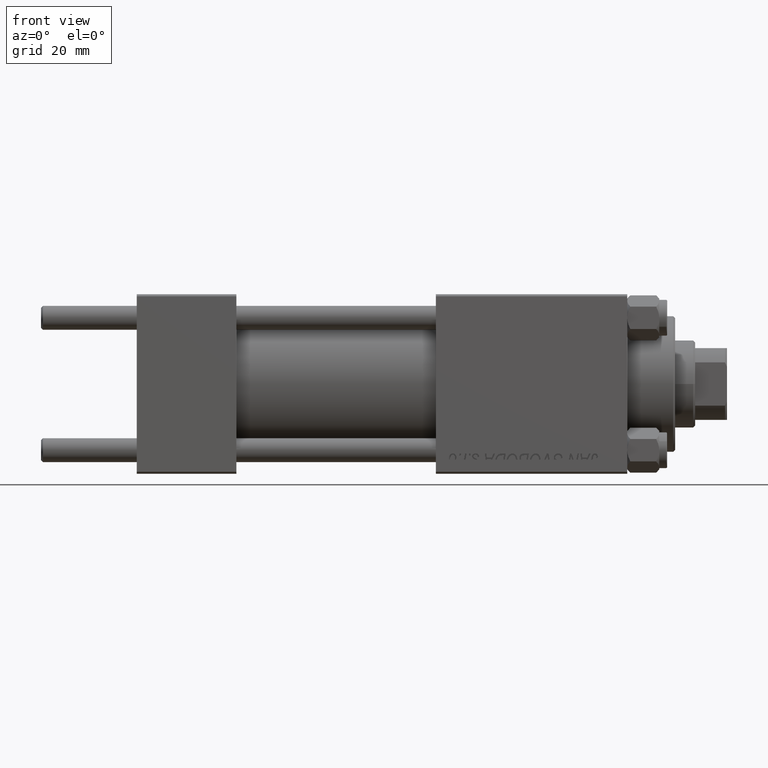
[diagram: clean part render]
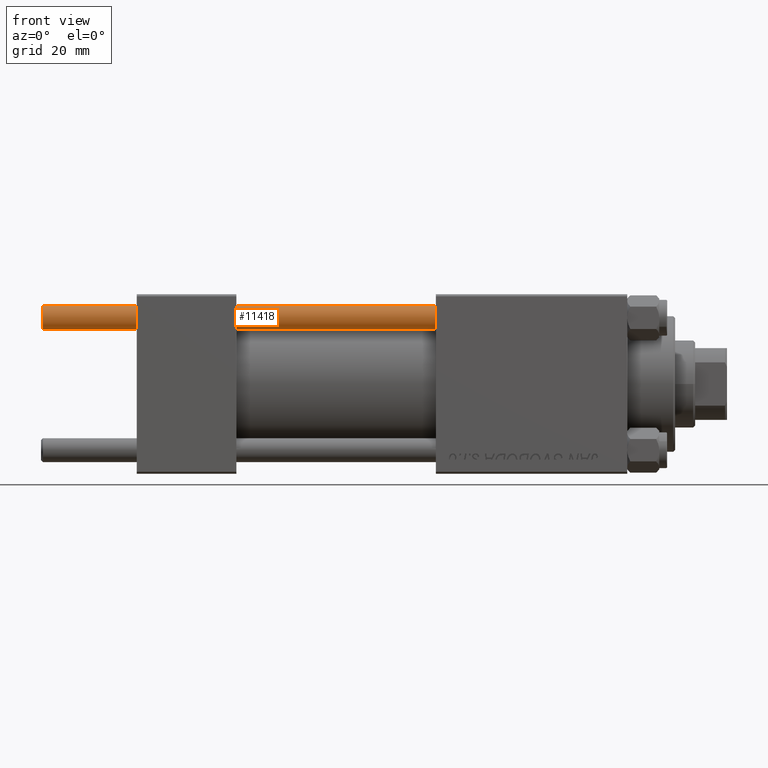
[diagram: same view with one face highlighted and labeled with its STEP entity id]
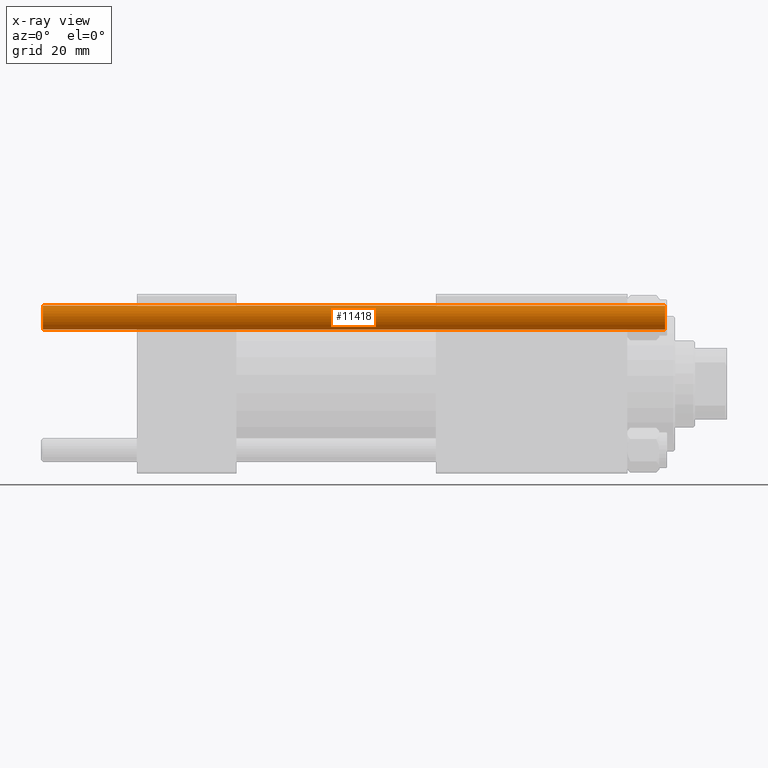
[diagram: x-ray of the same camera — body ghosted, the highlighted face saturated]
A machine part, front view. The second image highlights one B-rep face of the part: STEP entity #11418.
The next image is the same camera in x-ray: the body ghosted, the highlighted face saturated — about 0% of this face is hidden behind the body in this view.
In plain terms, the highlighted cylindrical surface (edge-blend (fillet) strip) has radius 3 mm, axis along (1, -0, 0).
Its self-contained STEP definition (entity closure, byte-faithful):
#767 = CARTESIAN_POINT ( 'NONE',  ( 0.000000000000000000, 0.000000000000000000, 156.5000000000000284 ) ) ;
#3072 = ORIENTED_EDGE ( 'NONE', *, *, #40832, .T. ) ;
#3074 = CARTESIAN_POINT ( 'NONE',  ( -3.000000000000000444, 0.000000000000000000, 0.4999999999999726885 ) ) ;
#3241 = CARTESIAN_POINT ( 'NONE',  ( 3.000000000000000444, 3.673940397442060361E-16, 156.5000000000000284 ) ) ;
#3388 = DIRECTION ( 'NONE',  ( -0.000000000000000000, -0.000000000000000000, -1.000000000000000000 ) ) ;
#3747 = CARTESIAN_POINT ( 'NONE',  ( 3.000000000000000444, 3.673940397442060361E-16, 0.4999999999999726885 ) ) ;
#4460 = VECTOR ( 'NONE', #49759, 1000.000000000000000 ) ;
#6427 = CARTESIAN_POINT ( 'NONE',  ( 3.000000000000000444, 3.673940397442060361E-16, 157.0000000000000000 ) ) ;
#7184 = CARTESIAN_POINT ( 'NONE',  ( -3.000000000000000444, 0.000000000000000000, 157.0000000000000000 ) ) ;
#11418 = ADVANCED_FACE ( 'NONE', ( #46055 ), #33550, .T. ) ;
#11778 = DIRECTION ( 'NONE',  ( -0.000000000000000000, -0.000000000000000000, -1.000000000000000000 ) ) ;
#12359 = DIRECTION ( 'NONE',  ( 1.000000000000000000, 0.000000000000000000, 0.000000000000000000 ) ) ;
#13427 = VERTEX_POINT ( 'NONE', #3747 ) ;
#16019 = EDGE_CURVE ( 'NONE', #13427, #18440, #25022, .T. ) ;
#18440 = VERTEX_POINT ( 'NONE', #3074 ) ;
#20185 = CARTESIAN_POINT ( 'NONE',  ( -3.000000000000000444, 0.000000000000000000, 156.5000000000000284 ) ) ;
#20429 = DIRECTION ( 'NONE',  ( 0.000000000000000000, 0.000000000000000000, -1.000000000000000000 ) ) ;
#24237 = ORIENTED_EDGE ( 'NONE', *, *, #27094, .T. ) ;
#25022 = CIRCLE ( 'NONE', #41131, 3.000000000000000444 ) ;
#25069 = CARTESIAN_POINT ( 'NONE',  ( 0.000000000000000000, 0.000000000000000000, 0.4999999999999726885 ) ) ;
#26198 = CIRCLE ( 'NONE', #45495, 3.000000000000000444 ) ;
#26663 = ORIENTED_EDGE ( 'NONE', *, *, #33754, .F. ) ;
#27052 = VERTEX_POINT ( 'NONE', #20185 ) ;
#27094 = EDGE_CURVE ( 'NONE', #27052, #45979, #26198, .T. ) ;
#30399 = ORIENTED_EDGE ( 'NONE', *, *, #16019, .T. ) ;
#31208 = DIRECTION ( 'NONE',  ( -1.000000000000000000, 0.000000000000000000, 0.000000000000000000 ) ) ;
#33550 = CYLINDRICAL_SURFACE ( 'NONE', #48308, 3.000000000000000444 ) ;
#33754 = EDGE_CURVE ( 'NONE', #27052, #18440, #37443, .T. ) ;
#34188 = EDGE_LOOP ( 'NONE', ( #24237, #3072, #30399, #26663 ) ) ;
#34743 = CARTESIAN_POINT ( 'NONE',  ( 0.000000000000000000, 0.000000000000000000, 157.0000000000000000 ) ) ;
#35661 = DIRECTION ( 'NONE',  ( 1.000000000000000000, 0.000000000000000000, 0.000000000000000000 ) ) ;
#37443 = LINE ( 'NONE', #7184, #4460 ) ;
#37928 = LINE ( 'NONE', #6427, #43310 ) ;
#40832 = EDGE_CURVE ( 'NONE', #45979, #13427, #37928, .T. ) ;
#41131 = AXIS2_PLACEMENT_3D ( 'NONE', #25069, #43199, #35661 ) ;
#43199 = DIRECTION ( 'NONE',  ( -0.000000000000000000, -0.000000000000000000, 1.000000000000000000 ) ) ;
#43310 = VECTOR ( 'NONE', #3388, 1000.000000000000000 ) ;
#45495 = AXIS2_PLACEMENT_3D ( 'NONE', #767, #20429, #12359 ) ;
#45979 = VERTEX_POINT ( 'NONE', #3241 ) ;
#46055 = FACE_OUTER_BOUND ( 'NONE', #34188, .T. ) ;
#48308 = AXIS2_PLACEMENT_3D ( 'NONE', #34743, #11778, #31208 ) ;
#49759 = DIRECTION ( 'NONE',  ( -0.000000000000000000, -0.000000000000000000, -1.000000000000000000 ) ) ;